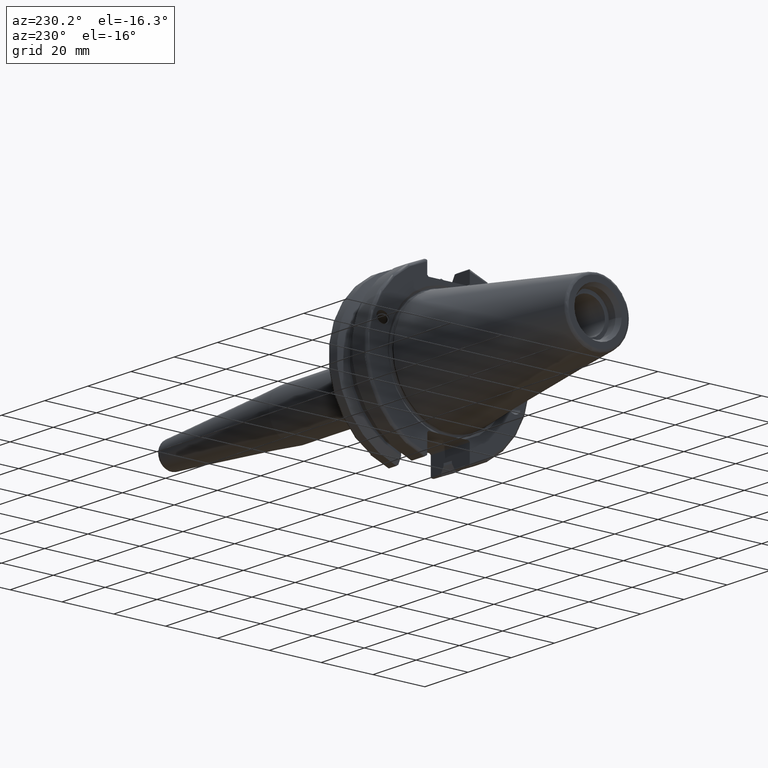
[diagram: clean part render]
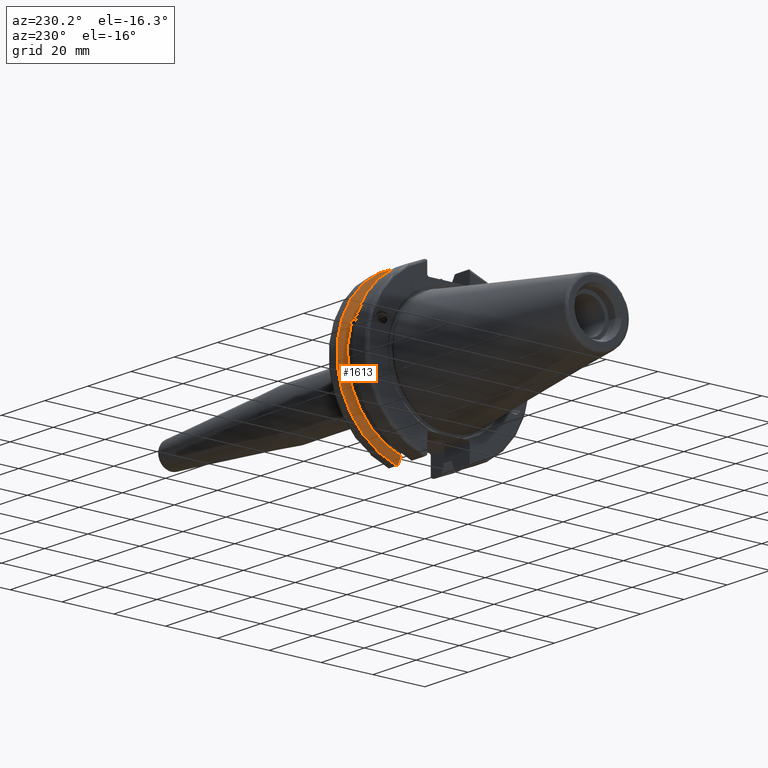
[diagram: same view with one face highlighted and labeled with its STEP entity id]
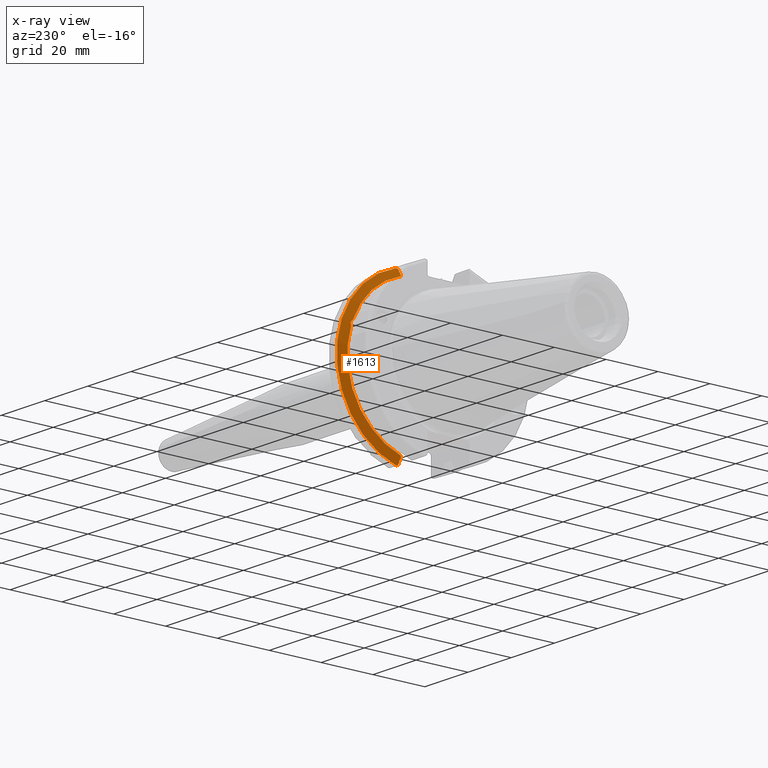
[diagram: x-ray of the same camera — body ghosted, the highlighted face saturated]
A machine part, auxiliary view. The second image highlights one B-rep face of the part: STEP entity #1613.
The next image is the same camera in x-ray: the body ghosted, the highlighted face saturated — about 0% of this face is hidden behind the body in this view.
In plain terms, the highlighted conical surface has half-angle 60 deg.
Its self-contained STEP definition (entity closure, byte-faithful):
#26=(
BOUNDED_CURVE()
B_SPLINE_CURVE(2,(#2818,#2819,#2820),.UNSPECIFIED.,.F.,.F.)
B_SPLINE_CURVE_WITH_KNOTS((3,3),(0.329353533631205,0.393258405001023),
 .UNSPECIFIED.)
CURVE()
GEOMETRIC_REPRESENTATION_ITEM()
RATIONAL_B_SPLINE_CURVE((1.00047644010577,1.00028444218286,1.))
REPRESENTATION_ITEM('')
);
#27=(
BOUNDED_CURVE()
B_SPLINE_CURVE(2,(#2835,#2836,#2837),.UNSPECIFIED.,.F.,.F.)
B_SPLINE_CURVE_WITH_KNOTS((3,3),(0.0550586467390279,0.331607789535849),
 .UNSPECIFIED.)
CURVE()
GEOMETRIC_REPRESENTATION_ITEM()
RATIONAL_B_SPLINE_CURVE((1.00031614445116,1.00095203904229,1.))
REPRESENTATION_ITEM('')
);
#34=(
BOUNDED_CURVE()
B_SPLINE_CURVE(2,(#3035,#3036,#3037),.UNSPECIFIED.,.F.,.F.)
B_SPLINE_CURVE_WITH_KNOTS((3,3),(0.,0.276549142796813),.UNSPECIFIED.)
CURVE()
GEOMETRIC_REPRESENTATION_ITEM()
RATIONAL_B_SPLINE_CURVE((1.,1.00095203904207,1.00031614445109))
REPRESENTATION_ITEM('')
);
#35=(
BOUNDED_CURVE()
B_SPLINE_CURVE(2,(#3052,#3053,#3054),.UNSPECIFIED.,.F.,.F.)
B_SPLINE_CURVE_WITH_KNOTS((3,3),(0.,0.0639048713675949),.UNSPECIFIED.)
CURVE()
GEOMETRIC_REPRESENTATION_ITEM()
RATIONAL_B_SPLINE_CURVE((1.,1.00028444218283,1.00047644010573))
REPRESENTATION_ITEM('')
);
#63=B_SPLINE_CURVE_WITH_KNOTS('',3,(#2653,#2654,#2655,#2656,#2657,#2658,
#2659,#2660),.UNSPECIFIED.,.F.,.F.,(4,2,2,4),(0.451995700189027,0.464547828547661,
0.504528771685166,0.544509714822671),.UNSPECIFIED.);
#67=B_SPLINE_CURVE_WITH_KNOTS('',3,(#2715,#2716,#2717,#2718,#2719,#2720,
#2721,#2722),.UNSPECIFIED.,.F.,.F.,(4,2,2,4),(0.544509714822671,0.584490657960176,
0.624471601097681,0.637023729456316),.UNSPECIFIED.);
#95=CONICAL_SURFACE('',#1808,30.3546886482472,1.0471975511966);
#448=FACE_OUTER_BOUND('',#549,.T.);
#549=EDGE_LOOP('',(#1454,#1455,#1456,#1457,#1458,#1459,#1460,#1461,#1462));
#611=CIRCLE('',#1748,28.9593772964944);
#630=CIRCLE('',#1801,31.75);
#633=CIRCLE('',#1809,28.9593772964944);
#721=VERTEX_POINT('',#2650);
#722=VERTEX_POINT('',#2652);
#729=VERTEX_POINT('',#2713);
#738=VERTEX_POINT('',#2755);
#749=VERTEX_POINT('',#2815);
#750=VERTEX_POINT('',#2817);
#791=VERTEX_POINT('',#3032);
#792=VERTEX_POINT('',#3034);
#795=VERTEX_POINT('',#3050);
#909=EDGE_CURVE('',#722,#721,#63,.T.);
#917=EDGE_CURVE('',#721,#729,#67,.T.);
#929=EDGE_CURVE('',#738,#722,#611,.T.);
#947=EDGE_CURVE('',#749,#750,#26,.T.);
#953=EDGE_CURVE('',#749,#738,#27,.T.);
#1014=EDGE_CURVE('',#792,#791,#34,.T.);
#1022=EDGE_CURVE('',#795,#791,#35,.T.);
#1023=EDGE_CURVE('',#750,#795,#630,.T.);
#1029=EDGE_CURVE('',#729,#792,#633,.T.);
#1454=ORIENTED_EDGE('',*,*,#909,.T.);
#1455=ORIENTED_EDGE('',*,*,#917,.T.);
#1456=ORIENTED_EDGE('',*,*,#1029,.T.);
#1457=ORIENTED_EDGE('',*,*,#1014,.T.);
#1458=ORIENTED_EDGE('',*,*,#1022,.F.);
#1459=ORIENTED_EDGE('',*,*,#1023,.F.);
#1460=ORIENTED_EDGE('',*,*,#947,.F.);
#1461=ORIENTED_EDGE('',*,*,#953,.T.);
#1462=ORIENTED_EDGE('',*,*,#929,.T.);
#1613=ADVANCED_FACE('',(#448),#95,.T.);
#1748=AXIS2_PLACEMENT_3D('',#2756,#2074,#2075);
#1801=AXIS2_PLACEMENT_3D('',#3056,#2228,#2229);
#1808=AXIS2_PLACEMENT_3D('',#3069,#2245,#2246);
#1809=AXIS2_PLACEMENT_3D('',#3070,#2247,#2248);
#2074=DIRECTION('center_axis',(1.,0.,0.));
#2075=DIRECTION('ref_axis',(0.,0.,-1.));
#2228=DIRECTION('center_axis',(1.,0.,0.));
#2229=DIRECTION('ref_axis',(0.,0.,-1.));
#2245=DIRECTION('center_axis',(1.,0.,0.));
#2246=DIRECTION('ref_axis',(0.,1.,0.));
#2247=DIRECTION('center_axis',(1.,0.,0.));
#2248=DIRECTION('ref_axis',(0.,0.,-1.));
#2650=CARTESIAN_POINT('',(13.276,27.51401829017,10.0142836826778));
#2652=CARTESIAN_POINT('',(13.091,27.4956274489925,9.09043478536249));
#2653=CARTESIAN_POINT('Ctrl Pts',(13.091,27.4956274489925,9.09043478536249));
#2654=CARTESIAN_POINT('Ctrl Pts',(13.1051204071996,27.5087667900418,9.1286059707622));
#2655=CARTESIAN_POINT('Ctrl Pts',(13.1185929817857,27.5206055003512,9.16696618806879));
#2656=CARTESIAN_POINT('Ctrl Pts',(13.171981441159,27.5642934663232,9.32791534028656));
#2657=CARTESIAN_POINT('Ctrl Pts',(13.2101197084175,27.5867382255984,9.46717946402648));
#2658=CARTESIAN_POINT('Ctrl Pts',(13.2623106446058,27.5847569104122,9.74771639360672));
#2659=CARTESIAN_POINT('Ctrl Pts',(13.276,27.559599249844,9.8890510252165));
#2660=CARTESIAN_POINT('Ctrl Pts',(13.276,27.51401829017,10.0142836826778));
#2713=CARTESIAN_POINT('',(13.091,26.9060914640648,10.7101715919071));
#2715=CARTESIAN_POINT('Ctrl Pts',(13.276,27.51401829017,10.0142836826778));
#2716=CARTESIAN_POINT('Ctrl Pts',(13.276,27.4684373304961,10.139516340139));
#2717=CARTESIAN_POINT('Ctrl Pts',(13.2623106446058,27.3968610665578,10.2639559818059));
#2718=CARTESIAN_POINT('Ctrl Pts',(13.2101197084175,27.2180531796526,10.4801333026531));
#2719=CARTESIAN_POINT('Ctrl Pts',(13.171981441159,27.1113422433189,10.5723885976054));
#2720=CARTESIAN_POINT('Ctrl Pts',(13.1185929817857,26.9744191989197,10.6676007180673));
#2721=CARTESIAN_POINT('Ctrl Pts',(13.1051204071996,26.9406927482839,10.6893765730703));
#2722=CARTESIAN_POINT('Ctrl Pts',(13.091,26.9060914640648,10.7101715919071));
#2755=CARTESIAN_POINT('',(13.091,8.19,-27.7771386827498));
#2756=CARTESIAN_POINT('Origin',(13.091,0.,0.));
#2815=CARTESIAN_POINT('',(14.4234146964874,8.19,-30.1755016258903));
#2817=CARTESIAN_POINT('',(14.7021667690756,8.67204822802685,-30.5427254764662));
#2818=CARTESIAN_POINT('Ctrl Pts',(14.4234146964874,8.19,-30.1755016258903));
#2819=CARTESIAN_POINT('Ctrl Pts',(14.5611085187884,8.42917748263465,-30.3577067892692));
#2820=CARTESIAN_POINT('Ctrl Pts',(14.7021667690756,8.67204822802686,-30.5427254764662));
#2835=CARTESIAN_POINT('Ctrl Pts',(14.4234146964874,8.19,-30.1755016258903));
#2836=CARTESIAN_POINT('Ctrl Pts',(13.7296364384736,8.19,-28.9303689539661));
#2837=CARTESIAN_POINT('Ctrl Pts',(13.091,8.19,-27.7771386827498));
#3032=CARTESIAN_POINT('',(14.4234146964874,8.19,30.1755016258903));
#3034=CARTESIAN_POINT('',(13.091,8.19,27.7771386827498));
#3035=CARTESIAN_POINT('Ctrl Pts',(13.091,8.19,27.7771386827498));
#3036=CARTESIAN_POINT('Ctrl Pts',(13.7296364384736,8.19,28.930368953966));
#3037=CARTESIAN_POINT('Ctrl Pts',(14.4234146964874,8.19,30.1755016258903));
#3050=CARTESIAN_POINT('',(14.7021667690756,8.67204822802685,30.5427254764662));
#3052=CARTESIAN_POINT('Ctrl Pts',(14.7021667690756,8.67204822802686,30.5427254764662));
#3053=CARTESIAN_POINT('Ctrl Pts',(14.5611085187837,8.42917748262646,30.357706789263));
#3054=CARTESIAN_POINT('Ctrl Pts',(14.4234146964874,8.19,30.1755016258903));
#3056=CARTESIAN_POINT('Origin',(14.7021667690756,0.,0.));
#3069=CARTESIAN_POINT('Origin',(13.8965833845378,0.,0.));
#3070=CARTESIAN_POINT('Origin',(13.091,0.,0.));